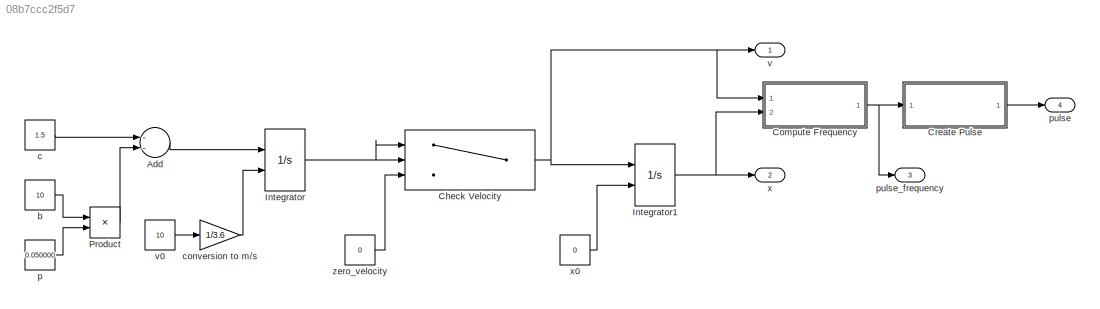
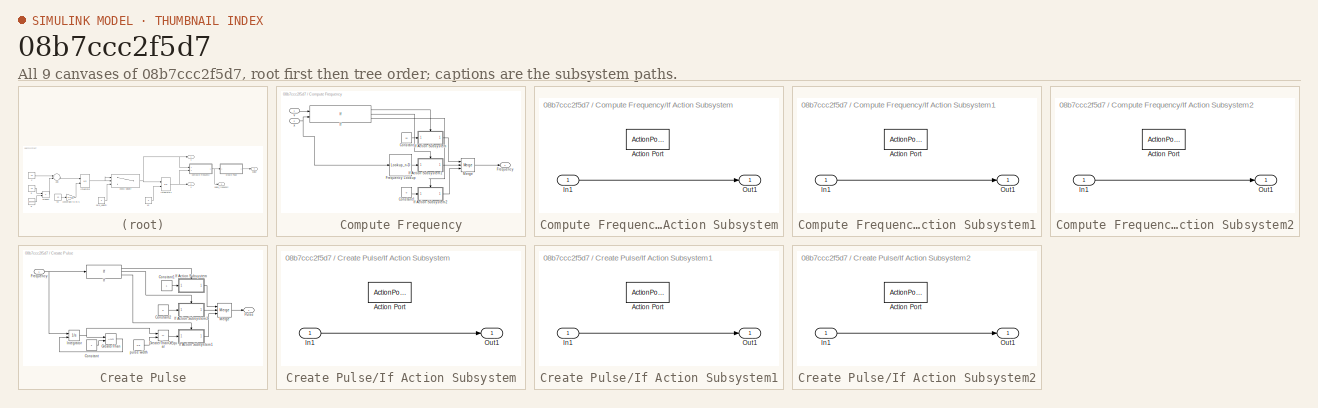
[diagram: thumbnail index - all 9 canvases of the model, root first then tree order]
MODEL slx_08b7ccc2f5d7
KIND model
CONFIG AbsTol = auto
CONFIG EnableMultiTasking = off
CONFIG FixedStep = 0.001000
CONFIG MaxStep = auto
CONFIG MinStep = auto
CONFIG RelTol = 1e-3
CONFIG SampleTimeConstraint = Unconstrained
CONFIG Solver = ode8
CONFIG SolverName = ode8
CONFIG StartTime = 0.0
CONFIG StopTime = 3
BLOCK [Sum] Add
  InputSameDT = off
  Inputs = --
  OutDataTypeStr = Inherit: Inherit via internal rule
  Ports = [2, 1]
  SaturateOnIntegerOverflow = off
BLOCK [Switch] Check Velocity
  InputSameDT = off
  SaturateOnIntegerOverflow = off
  Threshold = 0.0806
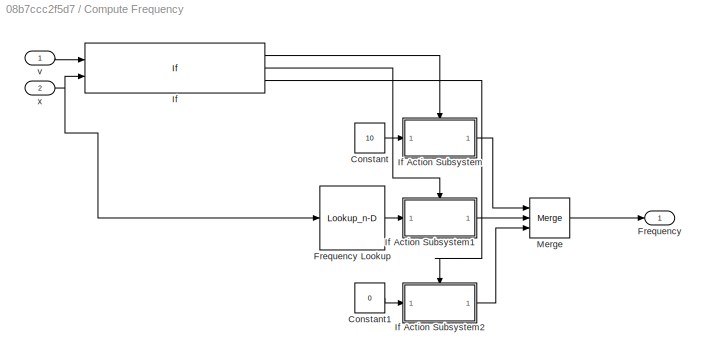
BLOCK [SubSystem] Compute Frequency
  Ports = [2, 1]
  RequestExecContextInheritance = off
  TreatAsAtomicUnit = on
BLOCK [Constant] Compute Frequency/Constant
  Value = 10
BLOCK [Constant] Compute Frequency/Constant1
  Value = 0
BLOCK [Outport] Compute Frequency/Frequency
  IconDisplay = Port number
BLOCK [Lookup_n-D] Compute Frequency/Frequency Lookup
  BreakpointsForDimension1 = [1,1.9]
  InternalRulePriority = Speed
  NumberOfTableDimensions = 1
  Ports = [1, 1]
  RndMeth = Simplest
  Table = [1,9]
BLOCK [If] Compute Frequency/If
  ElseIfExpressions = (0 < u1) & (u1 <=1) & (u2>=1)
  IfExpression = (0 < u1) & (u1 <= 1) & (u2>=1.9)
  NumInputs = 2
  Ports = [2, 3]
BLOCK [SubSystem] Compute Frequency/If Action Subsystem
  Ports = [1, 1, 0, 0, 0, 0, 0, 1]
  RequestExecContextInheritance = off
  TreatAsAtomicUnit = on
BLOCK [ActionPort] Compute Frequency/If Action Subsystem/Action Port
  ActionPortLabel = if((0 < u1) & (u1 <= 1) & (u2>=1.9))
BLOCK [Inport] Compute Frequency/If Action Subsystem/In1
  IconDisplay = Port number
BLOCK [Outport] Compute Frequency/If Action Subsystem/Out1
  IconDisplay = Port number
BLOCK [SubSystem] Compute Frequency/If Action Subsystem1
  Ports = [1, 1, 0, 0, 0, 0, 0, 1]
  RequestExecContextInheritance = off
  TreatAsAtomicUnit = on
BLOCK [ActionPort] Compute Frequency/If Action Subsystem1/Action Port
  ActionPortLabel = elseif( (0 < u1) & (u1 <=1) & (u2>=1))
BLOCK [Inport] Compute Frequency/If Action Subsystem1/In1
  IconDisplay = Port number
BLOCK [Outport] Compute Frequency/If Action Subsystem1/Out1
  IconDisplay = Port number
BLOCK [SubSystem] Compute Frequency/If Action Subsystem2
  Ports = [1, 1, 0, 0, 0, 0, 0, 1]
  RequestExecContextInheritance = off
  TreatAsAtomicUnit = on
BLOCK [ActionPort] Compute Frequency/If Action Subsystem2/Action Port
  ActionPortLabel = else
BLOCK [Inport] Compute Frequency/If Action Subsystem2/In1
  IconDisplay = Port number
BLOCK [Outport] Compute Frequency/If Action Subsystem2/Out1
  IconDisplay = Port number
BLOCK [Merge] Compute Frequency/Merge
  Inputs = 3
  Ports = [3, 1]
BLOCK [Inport] Compute Frequency/v 
  IconDisplay = Port number
BLOCK [Inport] Compute Frequency/x
  IconDisplay = Port number
  Port = 2
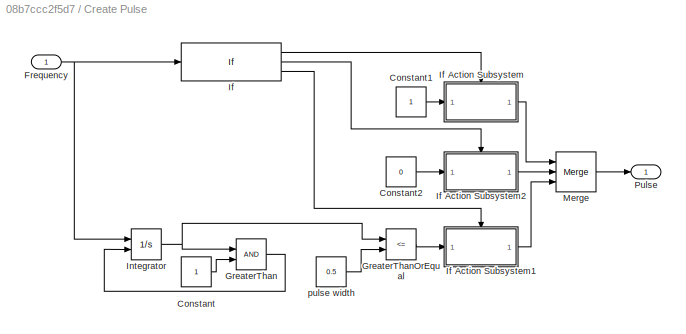
BLOCK [SubSystem] Create Pulse
  Ports = [1, 1]
  RequestExecContextInheritance = off
  TreatAsAtomicUnit = on
BLOCK [Constant] Create Pulse/Constant
BLOCK [Constant] Create Pulse/Constant1
  OutDataTypeStr = boolean
BLOCK [Constant] Create Pulse/Constant2
  OutDataTypeStr = boolean
  Value = 0
BLOCK [Inport] Create Pulse/Frequency
  IconDisplay = Port number
BLOCK [RelationalOperator] Create Pulse/GreaterThan
  InputSameDT = off
  OutDataTypeStr = boolean
  Ports = [2, 1]
  RndMeth = Simplest
BLOCK [RelationalOperator] Create Pulse/GreaterThanOrEqual
  InputSameDT = off
  Operator = <=
  OutDataTypeStr = boolean
  Ports = [2, 1]
  RndMeth = Simplest
BLOCK [If] Create Pulse/If
  ElseIfExpressions = u1 == 0
  IfExpression = u1 == 10
  Ports = [1, 3]
BLOCK [SubSystem] Create Pulse/If Action Subsystem
  Ports = [1, 1, 0, 0, 0, 0, 0, 1]
  RequestExecContextInheritance = off
  TreatAsAtomicUnit = on
BLOCK [ActionPort] Create Pulse/If Action Subsystem/Action Port
  ActionPortLabel = if(u1 == 10)
BLOCK [Inport] Create Pulse/If Action Subsystem/In1
  IconDisplay = Port number
BLOCK [Outport] Create Pulse/If Action Subsystem/Out1
  IconDisplay = Port number
BLOCK [SubSystem] Create Pulse/If Action Subsystem1
  Ports = [1, 1, 0, 0, 0, 0, 0, 1]
  RequestExecContextInheritance = off
  TreatAsAtomicUnit = on
BLOCK [ActionPort] Create Pulse/If Action Subsystem1/Action Port
  ActionPortLabel = else
BLOCK [Inport] Create Pulse/If Action Subsystem1/In1
  IconDisplay = Port number
BLOCK [Outport] Create Pulse/If Action Subsystem1/Out1
  IconDisplay = Port number
BLOCK [SubSystem] Create Pulse/If Action Subsystem2
  Ports = [1, 1, 0, 0, 0, 0, 0, 1]
  RequestExecContextInheritance = off
  TreatAsAtomicUnit = on
BLOCK [ActionPort] Create Pulse/If Action Subsystem2/Action Port
  ActionPortLabel = elseif(u1 == 0)
BLOCK [Inport] Create Pulse/If Action Subsystem2/In1
  IconDisplay = Port number
BLOCK [Outport] Create Pulse/If Action Subsystem2/Out1
  IconDisplay = Port number
BLOCK [Integrator] Create Pulse/Integrator
  ExternalReset = rising
  Ports = [2, 1]
BLOCK [Merge] Create Pulse/Merge
  Inputs = 3
  Ports = [3, 1]
BLOCK [Outport] Create Pulse/Pulse
  IconDisplay = Port number
BLOCK [Constant] Create Pulse/pulse width
  Value = 0.5
BLOCK [Integrator] Integrator
  InitialConditionSource = external
  Ports = [2, 1]
BLOCK [Integrator] Integrator1
  InitialConditionSource = external
  Ports = [2, 1]
BLOCK [Product] Product
  InputSameDT = off
  OutDataTypeStr = Inherit: Inherit via internal rule
  Ports = [2, 1]
  RndMeth = Floor
  SaturateOnIntegerOverflow = off
BLOCK [Constant] b
  Value = 10
BLOCK [Constant] c
  Value = 1.5
BLOCK [Gain] conversion to m//s
  Gain = 1/3.6
  OutDataTypeStr = Inherit: Inherit via internal rule
  ParamDataTypeStr = Inherit: Inherit via internal rule
  SaturateOnIntegerOverflow = off
BLOCK [Constant] p
  Value = 0.050000
BLOCK [Outport] pulse
  IconDisplay = Port number
  Port = 4
BLOCK [Outport] pulse_frequency
  IconDisplay = Port number
  Port = 3
BLOCK [Outport] v
  IconDisplay = Port number
BLOCK [Constant] v0
  Value = 10
BLOCK [Outport] x 
  IconDisplay = Port number
  Port = 2
BLOCK [Constant] x0
  Value = 0
BLOCK [Constant] zero_velocity 
  Value = 0
LINE Add:1 -> Integrator:1
NET Check Velocity:1 -> Compute Frequency:1, Integrator1:1, v:1
LINE Compute Frequency/Constant1:1 -> Compute Frequency/If Action Subsystem2:1
LINE Compute Frequency/Constant:1 -> Compute Frequency/If Action Subsystem:1
LINE Compute Frequency/Frequency Lookup:1 -> Compute Frequency/If Action Subsystem1:1
LINE Compute Frequency/If Action Subsystem/In1:1 -> Compute Frequency/If Action Subsystem/Out1:1
LINE Compute Frequency/If Action Subsystem1/In1:1 -> Compute Frequency/If Action Subsystem1/Out1:1
LINE Compute Frequency/If Action Subsystem1:1 -> Compute Frequency/Merge:2
LINE Compute Frequency/If Action Subsystem2/In1:1 -> Compute Frequency/If Action Subsystem2/Out1:1
LINE Compute Frequency/If Action Subsystem2:1 -> Compute Frequency/Merge:3
LINE Compute Frequency/If Action Subsystem:1 -> Compute Frequency/Merge:1
LINE Compute Frequency/If:1 -> Compute Frequency/If Action Subsystem:ifaction
LINE Compute Frequency/If:2 -> Compute Frequency/If Action Subsystem1:ifaction
LINE Compute Frequency/If:3 -> Compute Frequency/If Action Subsystem2:ifaction
LINE Compute Frequency/Merge:1 -> Compute Frequency/Frequency:1
LINE Compute Frequency/v :1 -> Compute Frequency/If:1
NET Compute Frequency/x:1 -> Compute Frequency/Frequency Lookup:1, Compute Frequency/If:2
NET Compute Frequency:1 -> Create Pulse:1, pulse_frequency:1
LINE Create Pulse/Constant1:1 -> Create Pulse/If Action Subsystem:1
LINE Create Pulse/Constant2:1 -> Create Pulse/If Action Subsystem2:1
LINE Create Pulse/Constant:1 -> Create Pulse/GreaterThan:2
NET Create Pulse/Frequency:1 -> Create Pulse/If:1, Create Pulse/Integrator:1
LINE Create Pulse/GreaterThan:1 -> Create Pulse/Integrator:2
LINE Create Pulse/GreaterThanOrEqual:1 -> Create Pulse/If Action Subsystem1:1
LINE Create Pulse/If Action Subsystem/In1:1 -> Create Pulse/If Action Subsystem/Out1:1
LINE Create Pulse/If Action Subsystem1/In1:1 -> Create Pulse/If Action Subsystem1/Out1:1
LINE Create Pulse/If Action Subsystem1:1 -> Create Pulse/Merge:3
LINE Create Pulse/If Action Subsystem2/In1:1 -> Create Pulse/If Action Subsystem2/Out1:1
LINE Create Pulse/If Action Subsystem2:1 -> Create Pulse/Merge:2
LINE Create Pulse/If Action Subsystem:1 -> Create Pulse/Merge:1
LINE Create Pulse/If:1 -> Create Pulse/If Action Subsystem:ifaction
LINE Create Pulse/If:2 -> Create Pulse/If Action Subsystem2:ifaction
LINE Create Pulse/If:3 -> Create Pulse/If Action Subsystem1:ifaction
NET Create Pulse/Integrator:1 -> Create Pulse/GreaterThan:1, Create Pulse/GreaterThanOrEqual:1
LINE Create Pulse/Merge:1 -> Create Pulse/Pulse:1
LINE Create Pulse/pulse width:1 -> Create Pulse/GreaterThanOrEqual:2
LINE Create Pulse:1 -> pulse:1
NET Integrator1:1 -> Compute Frequency:2, x :1
NET Integrator:1 -> Check Velocity:1, Check Velocity:2
LINE Product:1 -> Add:2
LINE b:1 -> Product:1
LINE c:1 -> Add:1
LINE conversion to m//s:1 -> Integrator:2
LINE p:1 -> Product:2
LINE v0:1 -> conversion to m//s:1
LINE x0:1 -> Integrator1:2
LINE zero_velocity :1 -> Check Velocity:3
note: NET lines group one-source signal fan-out (src -> all destinations, sorted); 1:1 wires keep LINE
